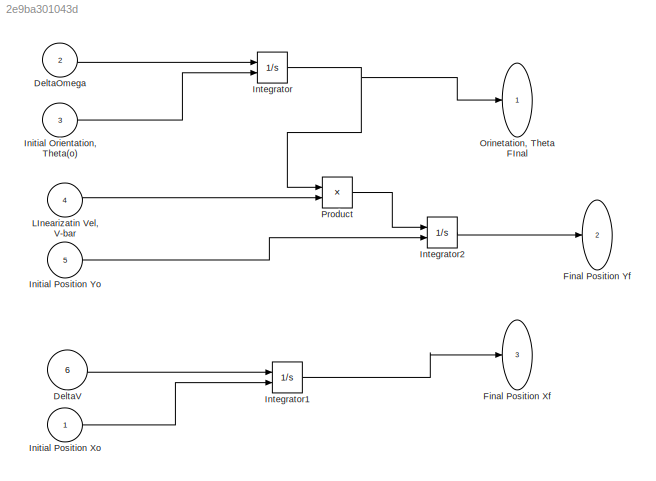
MODEL slx_2e9ba301043d
KIND model
CONFIG AbsTol = auto
CONFIG EnableMultiTasking = off
CONFIG FixedStep = auto
CONFIG MaxStep = auto
CONFIG MinStep = auto
CONFIG RelTol = 1e-3
CONFIG SampleTimeConstraint = Unconstrained
CONFIG Solver = VariableStepAuto
CONFIG SolverName = VariableStepAuto
CONFIG StartTime = 0.0
CONFIG StopTime = 10.0
BLOCK [Inport] DeltaOmega 
  IconDisplay = Port number
  Port = 2
BLOCK [Inport] DeltaV 
  IconDisplay = Port number
  Port = 6
BLOCK [Outport] Final Position Xf 
  IconDisplay = Port number
  Port = 3
BLOCK [Outport] Final Position Yf 
  IconDisplay = Port number
  Port = 2
BLOCK [Inport] Initial Orientation, Theta(o) 
  IconDisplay = Port number
  Port = 3
BLOCK [Inport] Initial Position Xo 
  IconDisplay = Port number
BLOCK [Inport] Initial Position Yo 
  IconDisplay = Port number
  Port = 5
BLOCK [Integrator] Integrator
  InitialConditionSource = external
  Ports = [2, 1]
BLOCK [Integrator] Integrator1
  InitialConditionSource = external
  Ports = [2, 1]
BLOCK [Integrator] Integrator2
  InitialConditionSource = external
  Ports = [2, 1]
BLOCK [Inport] LInearizatin Vel, V-bar 
  IconDisplay = Port number
  Port = 4
BLOCK [Outport] Orinetation, Theta FInal 
  IconDisplay = Port number
BLOCK [Product] Product
  InputSameDT = off
  OutDataTypeStr = Inherit: Inherit via internal rule
  Ports = [2, 1]
  RndMeth = Floor
  SaturateOnIntegerOverflow = off
LINE DeltaOmega :1 -> Integrator:1
LINE DeltaV :1 -> Integrator1:1
LINE Initial Orientation, Theta(o) :1 -> Integrator:2
LINE Initial Position Xo :1 -> Integrator1:2
LINE Initial Position Yo :1 -> Integrator2:2
LINE Integrator1:1 -> Final Position Xf :1
LINE Integrator2:1 -> Final Position Yf :1
NET Integrator:1 -> Orinetation, Theta FInal :1, Product:1
LINE LInearizatin Vel, V-bar :1 -> Product:2
LINE Product:1 -> Integrator2:1
note: NET lines group one-source signal fan-out (src -> all destinations, sorted); 1:1 wires keep LINE
